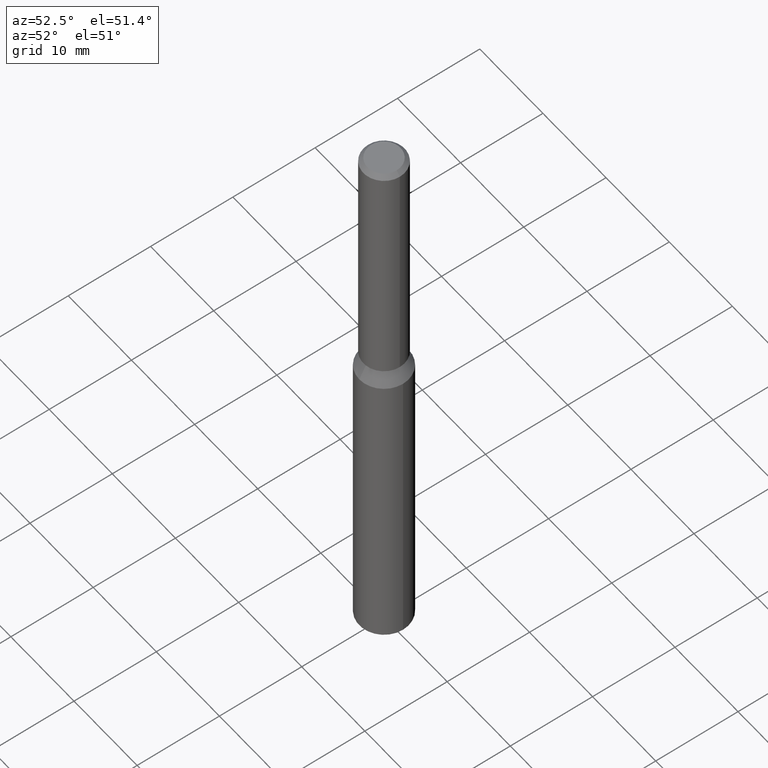
[diagram: clean part render]
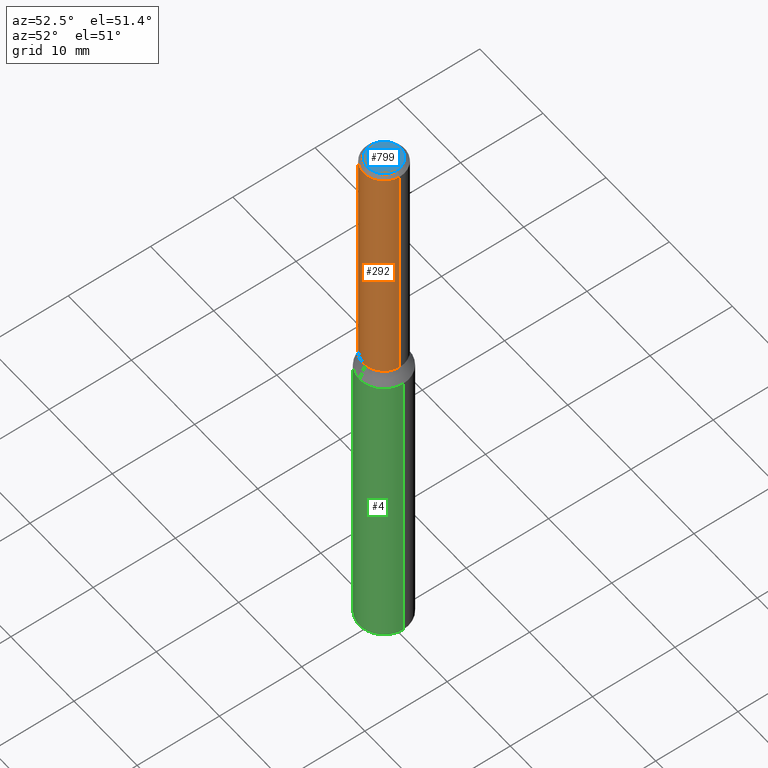
[diagram: same view with three faces highlighted in distinct colors, each labeled with its STEP entity id]
A machine part, auxiliary view with three faces highlighted in distinct colors.
Their STEP definitions:

[orange] entity #292 — the highlighted cylindrical surface (edge-blend (fillet) strip) has radius 2.5 mm, axis along (-0, -0, -1).
#255 = CIRCLE ( 'NONE', #8691, 2.500000000000000000 ) ;
#292 = ADVANCED_FACE ( 'NONE', ( #3559 ), #6595, .T. ) ;
#879 = ORIENTED_EDGE ( 'NONE', *, *, #12673, .F. ) ;
#2177 = DIRECTION ( 'NONE',  ( -0.0000000000000000000, 1.967742040464204400E-018, -1.000000000000000000 ) ) ;
#2302 = ORIENTED_EDGE ( 'NONE', *, *, #3798, .T. ) ;
#2619 = VERTEX_POINT ( 'NONE', #8099 ) ;
#3011 = AXIS2_PLACEMENT_3D ( 'NONE', #11407, #12547, #12357 ) ;
#3255 = CARTESIAN_POINT ( 'NONE',  ( -2.500000000000000000, 0.0000000000000000000, 70.00000000000000000 ) ) ;
#3273 = DIRECTION ( 'NONE',  ( 0.0000000000000000000, 1.000000000000000000, 0.0000000000000000000 ) ) ;
#3559 = FACE_OUTER_BOUND ( 'NONE', #13322, .T. ) ;
#3798 = EDGE_CURVE ( 'NONE', #13361, #5083, #13248, .T. ) ;
#4317 = ORIENTED_EDGE ( 'NONE', *, *, #8091, .F. ) ;
#5083 = VERTEX_POINT ( 'NONE', #13032 ) ;
#5193 = DIRECTION ( 'NONE',  ( -1.000000000000000000, 0.0000000000000000000, 0.0000000000000000000 ) ) ;
#5324 = DIRECTION ( 'NONE',  ( -0.0000000000000000000, -0.0000000000000000000, -1.000000000000000000 ) ) ;
#5358 = VERTEX_POINT ( 'NONE', #8084 ) ;
#5600 = VECTOR ( 'NONE', #10133, 1000.000000000000000 ) ;
#6550 = EDGE_CURVE ( 'NONE', #5083, #2619, #8617, .T. ) ;
#6595 = CYLINDRICAL_SURFACE ( 'NONE', #9955, 2.500000000000000000 ) ;
#7838 = VECTOR ( 'NONE', #5324, 1000.000000000000000 ) ;
#8084 = CARTESIAN_POINT ( 'NONE',  ( 2.500000000000000000, 3.061616997868383100E-016, 40.10000000000000100 ) ) ;
#8091 = EDGE_CURVE ( 'NONE', #5358, #2619, #255, .T. ) ;
#8099 = CARTESIAN_POINT ( 'NONE',  ( -2.500000000000000000, 0.0000000000000000000, 40.10000000000000100 ) ) ;
#8617 = LINE ( 'NONE', #3255, #5600 ) ;
#8691 = AXIS2_PLACEMENT_3D ( 'NONE', #13450, #2177, #3273 ) ;
#9955 = AXIS2_PLACEMENT_3D ( 'NONE', #10728, #13010, #5193 ) ;
#10133 = DIRECTION ( 'NONE',  ( -0.0000000000000000000, -0.0000000000000000000, -1.000000000000000000 ) ) ;
#10238 = ORIENTED_EDGE ( 'NONE', *, *, #6550, .T. ) ;
#10728 = CARTESIAN_POINT ( 'NONE',  ( 0.0000000000000000000, 0.0000000000000000000, 70.00000000000000000 ) ) ;
#11195 = LINE ( 'NONE', #13393, #7838 ) ;
#11407 = CARTESIAN_POINT ( 'NONE',  ( 0.0000000000000000000, 0.0000000000000000000, 69.50000000000001400 ) ) ;
#12055 = CARTESIAN_POINT ( 'NONE',  ( 2.500000000000000000, 3.061616997868383100E-016, 69.50000000000001400 ) ) ;
#12357 = DIRECTION ( 'NONE',  ( 1.000000000000000000, 0.0000000000000000000, 0.0000000000000000000 ) ) ;
#12547 = DIRECTION ( 'NONE',  ( 0.0000000000000000000, 0.0000000000000000000, -1.000000000000000000 ) ) ;
#12673 = EDGE_CURVE ( 'NONE', #13361, #5358, #11195, .T. ) ;
#13010 = DIRECTION ( 'NONE',  ( -0.0000000000000000000, -0.0000000000000000000, -1.000000000000000000 ) ) ;
#13032 = CARTESIAN_POINT ( 'NONE',  ( -2.500000000000000000, 0.0000000000000000000, 69.50000000000001400 ) ) ;
#13248 = CIRCLE ( 'NONE', #3011, 2.500000000000000000 ) ;
#13322 = EDGE_LOOP ( 'NONE', ( #879, #2302, #10238, #4317 ) ) ;
#13361 = VERTEX_POINT ( 'NONE', #12055 ) ;
#13393 = CARTESIAN_POINT ( 'NONE',  ( 2.500000000000000000, 3.061616997868383100E-016, 70.00000000000000000 ) ) ;
#13450 = CARTESIAN_POINT ( 'NONE',  ( 0.0000000000000000000, 0.0000000000000000000, 40.10000000000000100 ) ) ;

[blue] entity #799 — the highlighted planar face has unit normal (0, 0, 1).
#73 = VERTEX_POINT ( 'NONE', #7836 ) ;
#799 = ADVANCED_FACE ( 'NONE', ( #13637 ), #14643, .T. ) ;
#2196 = DIRECTION ( 'NONE',  ( 0.0000000000000000000, 0.0000000000000000000, 1.000000000000000000 ) ) ;
#2296 = CARTESIAN_POINT ( 'NONE',  ( 0.0000000000000000000, 0.0000000000000000000, 70.00000000000000000 ) ) ;
#3963 = CARTESIAN_POINT ( 'NONE',  ( -2.000000000000008900, 0.0000000000000000000, 70.00000000000000000 ) ) ;
#5546 = ORIENTED_EDGE ( 'NONE', *, *, #13577, .T. ) ;
#5672 = EDGE_LOOP ( 'NONE', ( #5546, #13380 ) ) ;
#6188 = AXIS2_PLACEMENT_3D ( 'NONE', #6712, #2196, #10078 ) ;
#6301 = CIRCLE ( 'NONE', #10185, 2.000000000000008900 ) ;
#6618 = CARTESIAN_POINT ( 'NONE',  ( 0.0000000000000000000, 0.0000000000000000000, 70.00000000000000000 ) ) ;
#6712 = CARTESIAN_POINT ( 'NONE',  ( 0.0000000000000000000, 0.0000000000000000000, 70.00000000000000000 ) ) ;
#7362 = DIRECTION ( 'NONE',  ( 0.0000000000000000000, 0.0000000000000000000, 1.000000000000000000 ) ) ;
#7836 = CARTESIAN_POINT ( 'NONE',  ( 2.000000000000008900, 2.755455298081550200E-016, 70.00000000000000000 ) ) ;
#7877 = DIRECTION ( 'NONE',  ( 1.000000000000000000, 0.0000000000000000000, 0.0000000000000000000 ) ) ;
#8563 = EDGE_CURVE ( 'NONE', #73, #14447, #6301, .T. ) ;
#9088 = DIRECTION ( 'NONE',  ( 0.0000000000000000000, 0.0000000000000000000, 1.000000000000000000 ) ) ;
#9162 = AXIS2_PLACEMENT_3D ( 'NONE', #2296, #9088, #13523 ) ;
#10078 = DIRECTION ( 'NONE',  ( 1.000000000000000000, 0.0000000000000000000, -0.0000000000000000000 ) ) ;
#10185 = AXIS2_PLACEMENT_3D ( 'NONE', #6618, #7362, #7877 ) ;
#13103 = CIRCLE ( 'NONE', #9162, 2.000000000000008900 ) ;
#13380 = ORIENTED_EDGE ( 'NONE', *, *, #8563, .T. ) ;
#13523 = DIRECTION ( 'NONE',  ( 1.000000000000000000, 0.0000000000000000000, 0.0000000000000000000 ) ) ;
#13577 = EDGE_CURVE ( 'NONE', #14447, #73, #13103, .T. ) ;
#13637 = FACE_OUTER_BOUND ( 'NONE', #5672, .T. ) ;
#14447 = VERTEX_POINT ( 'NONE', #3963 ) ;
#14643 = PLANE ( 'NONE',  #6188 ) ;

[green] entity #4 — the highlighted cylindrical surface (edge-blend (fillet) strip) has radius 3 mm, axis along (-0, -0, -1).
#4 = ADVANCED_FACE ( 'NONE', ( #9931 ), #2879, .T. ) ;
#815 = VERTEX_POINT ( 'NONE', #3379 ) ;
#2879 = CYLINDRICAL_SURFACE ( 'NONE', #11971, 3.000000000000000400 ) ;
#3013 = ORIENTED_EDGE ( 'NONE', *, *, #11035, .T. ) ;
#3295 = LINE ( 'NONE', #13062, #13376 ) ;
#3379 = CARTESIAN_POINT ( 'NONE',  ( -3.000000000000000400, 0.0000000000000000000, 0.0000000000000000000 ) ) ;
#3557 = DIRECTION ( 'NONE',  ( -0.0000000000000000000, 1.967742040464204400E-018, -1.000000000000000000 ) ) ;
#3653 = DIRECTION ( 'NONE',  ( -0.0000000000000000000, 1.967742040464204400E-018, -1.000000000000000000 ) ) ;
#4122 = DIRECTION ( 'NONE',  ( -0.0000000000000000000, -0.0000000000000000000, -1.000000000000000000 ) ) ;
#4142 = CARTESIAN_POINT ( 'NONE',  ( 3.000000000000005800, 3.673940397442067800E-016, 38.00000000000000000 ) ) ;
#4177 = CIRCLE ( 'NONE', #14566, 3.000000000000000400 ) ;
#4462 = DIRECTION ( 'NONE',  ( -0.0000000000000000000, -0.0000000000000000000, -1.000000000000000000 ) ) ;
#4549 = VECTOR ( 'NONE', #13970, 1000.000000000000000 ) ;
#5163 = EDGE_CURVE ( 'NONE', #10974, #815, #14463, .T. ) ;
#5843 = DIRECTION ( 'NONE',  ( 0.0000000000000000000, 0.0000000000000000000, 1.000000000000000000 ) ) ;
#5867 = VERTEX_POINT ( 'NONE', #4142 ) ;
#5874 = DIRECTION ( 'NONE',  ( 0.0000000000000000000, 1.000000000000000000, 0.0000000000000000000 ) ) ;
#7233 = CARTESIAN_POINT ( 'NONE',  ( 0.0000000000000000000, -7.477419753763976000E-017, 38.00000000000000000 ) ) ;
#7336 = CIRCLE ( 'NONE', #14395, 3.000000000000005800 ) ;
#7550 = CARTESIAN_POINT ( 'NONE',  ( 3.673940397442066300E-016, -3.000000000000005800, 38.00000000000000000 ) ) ;
#8192 = ORIENTED_EDGE ( 'NONE', *, *, #5163, .T. ) ;
#8398 = EDGE_CURVE ( 'NONE', #815, #13567, #4177, .T. ) ;
#8481 = CARTESIAN_POINT ( 'NONE',  ( -3.000000000000000400, 0.0000000000000000000, 40.00000000000000000 ) ) ;
#8731 = CARTESIAN_POINT ( 'NONE',  ( 3.000000000000000400, 3.673940397442060400E-016, 0.0000000000000000000 ) ) ;
#9418 = EDGE_LOOP ( 'NONE', ( #9904, #3013, #11668, #8192, #12455 ) ) ;
#9904 = ORIENTED_EDGE ( 'NONE', *, *, #14520, .F. ) ;
#9931 = FACE_OUTER_BOUND ( 'NONE', #9418, .T. ) ;
#10112 = CIRCLE ( 'NONE', #11089, 3.000000000000005800 ) ;
#10256 = DIRECTION ( 'NONE',  ( 0.0000000000000000000, 1.000000000000000000, 0.0000000000000000000 ) ) ;
#10306 = CARTESIAN_POINT ( 'NONE',  ( 0.0000000000000000000, -7.477419753763976000E-017, 38.00000000000000000 ) ) ;
#10375 = DIRECTION ( 'NONE',  ( 1.000000000000000000, 0.0000000000000000000, 0.0000000000000000000 ) ) ;
#10785 = VERTEX_POINT ( 'NONE', #7550 ) ;
#10974 = VERTEX_POINT ( 'NONE', #14635 ) ;
#11035 = EDGE_CURVE ( 'NONE', #5867, #10785, #10112, .T. ) ;
#11089 = AXIS2_PLACEMENT_3D ( 'NONE', #10306, #3557, #10256 ) ;
#11126 = EDGE_CURVE ( 'NONE', #10785, #10974, #7336, .T. ) ;
#11236 = CARTESIAN_POINT ( 'NONE',  ( 0.0000000000000000000, 0.0000000000000000000, 40.00000000000000000 ) ) ;
#11668 = ORIENTED_EDGE ( 'NONE', *, *, #11126, .T. ) ;
#11971 = AXIS2_PLACEMENT_3D ( 'NONE', #11236, #4462, #14646 ) ;
#12455 = ORIENTED_EDGE ( 'NONE', *, *, #8398, .T. ) ;
#12531 = CARTESIAN_POINT ( 'NONE',  ( 0.0000000000000000000, 0.0000000000000000000, 0.0000000000000000000 ) ) ;
#13062 = CARTESIAN_POINT ( 'NONE',  ( 3.000000000000000400, 3.673940397442060400E-016, 40.00000000000000000 ) ) ;
#13376 = VECTOR ( 'NONE', #4122, 1000.000000000000000 ) ;
#13567 = VERTEX_POINT ( 'NONE', #8731 ) ;
#13970 = DIRECTION ( 'NONE',  ( -0.0000000000000000000, -0.0000000000000000000, -1.000000000000000000 ) ) ;
#14395 = AXIS2_PLACEMENT_3D ( 'NONE', #7233, #3653, #5874 ) ;
#14463 = LINE ( 'NONE', #8481, #4549 ) ;
#14520 = EDGE_CURVE ( 'NONE', #5867, #13567, #3295, .T. ) ;
#14566 = AXIS2_PLACEMENT_3D ( 'NONE', #12531, #5843, #10375 ) ;
#14635 = CARTESIAN_POINT ( 'NONE',  ( -3.000000000000005800, 1.324076836766224600E-031, 38.00000000000000000 ) ) ;
#14646 = DIRECTION ( 'NONE',  ( -1.000000000000000000, 0.0000000000000000000, 0.0000000000000000000 ) ) ;